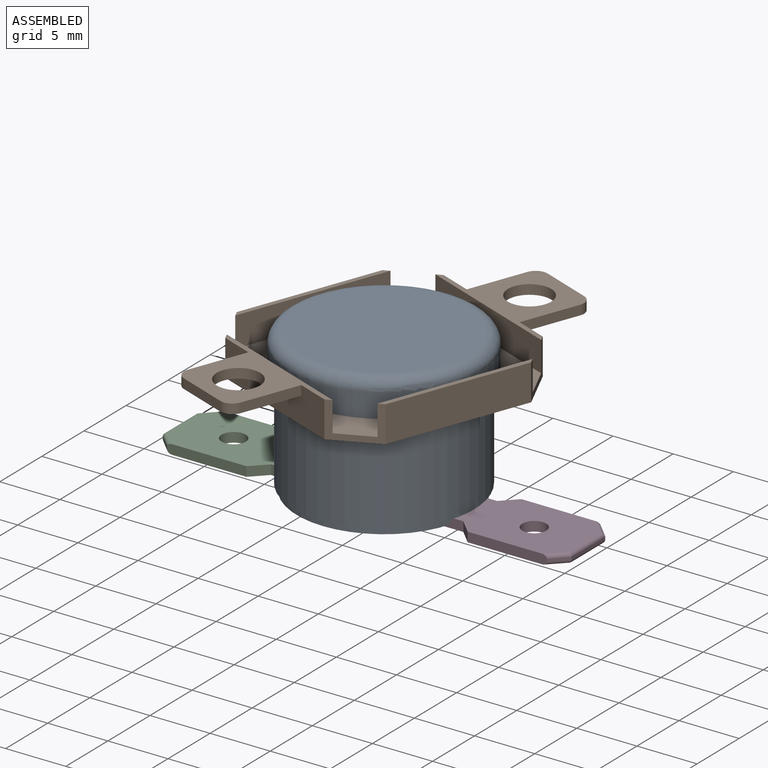
[diagram: assembled view]
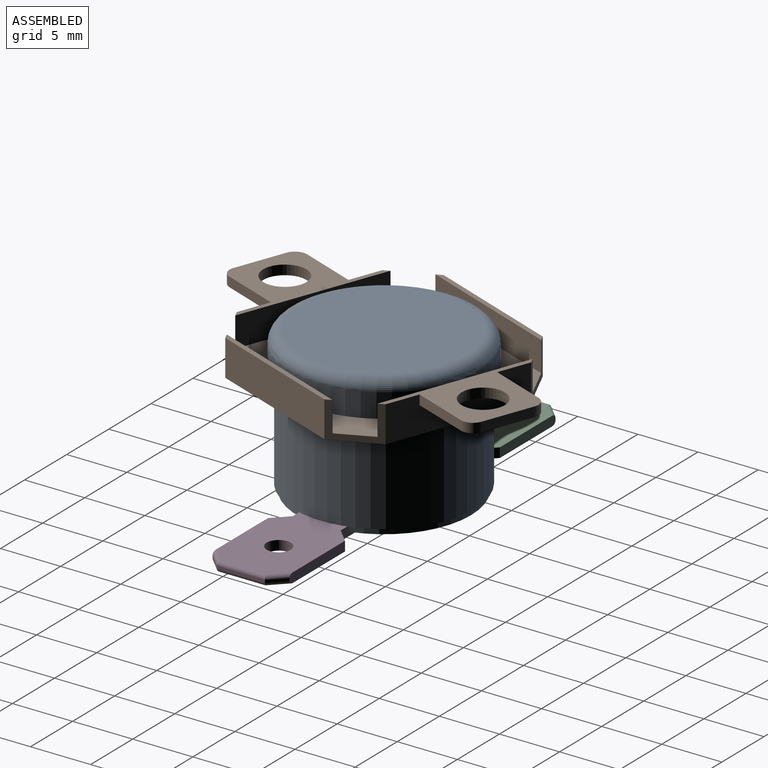
[diagram: assembled view, second angle]
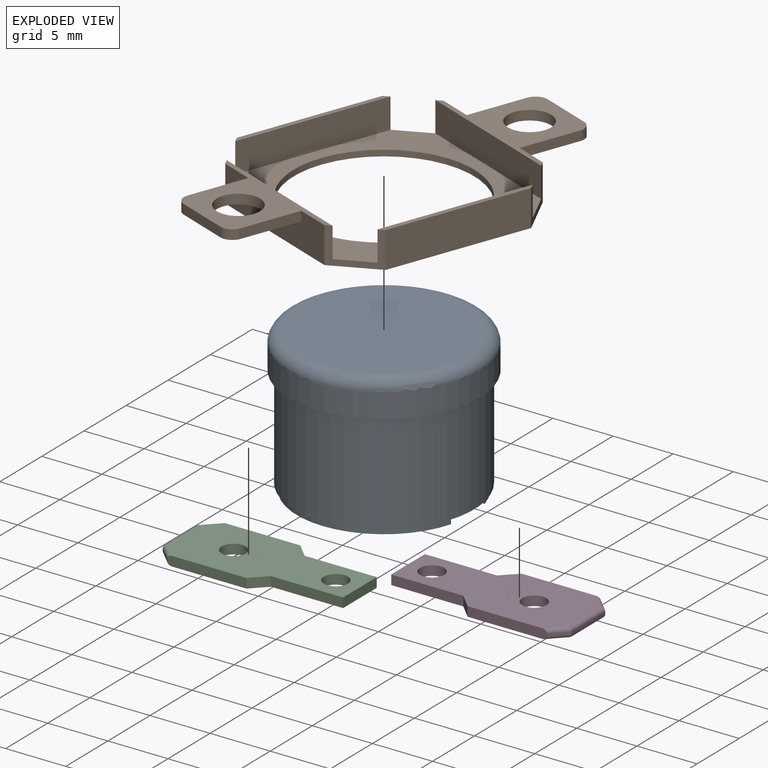
[diagram: exploded view]
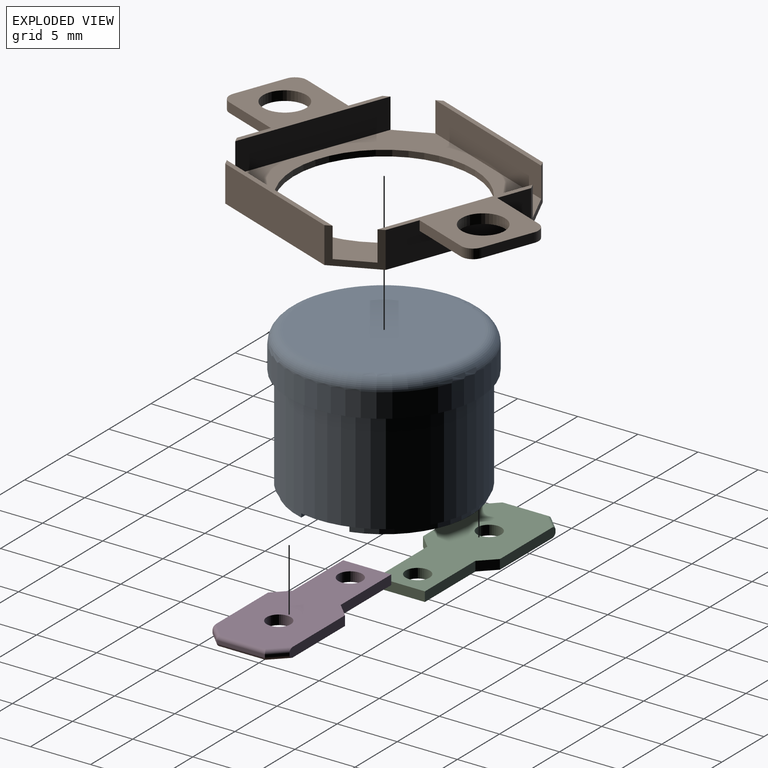
[diagram: exploded view, second angle]
ASSEMBLY  parts=4 mates=3
PART A: 19 faces, bbox 17.2x17.2x12 mm
  f0: cylinder r=7.25mm len=13.94mm, axis (0,0,-1), area 9.4mm2, adj f1,f7,f12,f14
  f1: plane 14.5x13.94mm, normal (0,0,1), area 123.9mm2, adj f0,f8,f9,f10,f12,f13,f14,f15
  f2: cylinder r=7.95mm len=15.9mm, axis (0,0,-1), area 99.9mm2, adj f3,f5
  f3: plane 15.9x15.9mm, normal (0,0,1), area 21.8mm2, adj f2,f6
  f4: plane 13.9x13.9mm, normal (0,0,-1), area 151.7mm2, adj f5
  f5: torus R=6.95mm, axis (0,0,1), area 74.9mm2, adj f2,f4
  f6: cylinder r=7.5mm len=15mm, axis (0,0,-1), area 400.6mm2, adj f3,f7
  f7: plane 15x15mm, normal (0,0,1), area 46.6mm2, adj f0,f6,f8,f9,f10,f11,f12,f13
  f8: cylinder r=7.25mm len=13.94mm, axis (0,0,-1), area 9.4mm2, adj f1,f7,f9,f13
  f9: plane 4.97x0.5mm, normal (0,-1,0), area 2.5mm2, adj f1,f7,f8,f10
  f10: plane 4x0.5mm, normal (1,0,0), area 2mm2, adj f1,f7,f9,f12
  f11: cylinder r=1mm len=2mm, axis (0,0,1), area 3.1mm2, adj f7,f17
  f12: plane 4.97x0.5mm, normal (0,1,0), area 2.5mm2, adj f0,f1,f7,f10
  f13: plane 4.97x0.5mm, normal (0,-1,0), area 2.5mm2, adj f1,f7,f8,f15
  f14: plane 4.97x0.5mm, normal (0,1,0), area 2.5mm2, adj f0,f1,f7,f15
  f15: plane 4x0.5mm, normal (-1,0,0), area 2mm2, adj f1,f7,f13,f14
  f16: cylinder r=1mm len=2mm, axis (0,0,1), area 3.1mm2, adj f7,f18
  f17: plane 2x2mm, normal (0,0,1), area 3.1mm2, adj f11
  f18: plane 2x2mm, normal (0,0,1), area 3.1mm2, adj f16
PART B: 33 faces, bbox 18x30x3 mm
  f0: plane 12x3mm, normal (0,1,0), area 30.9mm2, adj f1,f2,f6,f12,f23,f24,f25
  f1: plane 3x3mm, normal (-0.71,0.71,0), area 4.9mm2, adj f0,f5,f6,f7,f12,f15,f16,f18
  f2: plane 3x3mm, normal (0.71,0.71,0), area 4.9mm2, adj f0,f6,f11,f12,f13,f16,f17,f18
  f3: cylinder r=7.5mm len=15mm, axis (0,0,-1), area 23.6mm2, adj f12,f18
  f4: plane 12.8x6.4mm, normal (0,0,-1), area 32.8mm2, adj f8,f9,f10,f14,f19,f20,f22,f28
  f5: plane 12.8x0.4mm, normal (0,0,-1), area 5mm2, adj f1,f7,f8,f15
  f6: plane 12.8x6.4mm, normal (0,0,-1), area 32.8mm2, adj f0,f1,f2,f16,f23,f25,f26,f27
  f7: plane 12x3mm, normal (-1,0,0), area 36mm2, adj f1,f5,f8,f12
  f8: plane 3x3mm, normal (-0.71,-0.71,0), area 4.9mm2, adj f4,f5,f7,f9,f12,f14,f15,f18
  f9: plane 12x3mm, normal (0,-1,0), area 30.9mm2, adj f4,f8,f10,f12,f19,f20,f21
  f10: plane 3x3mm, normal (0.71,-0.71,0), area 4.9mm2, adj f4,f9,f11,f12,f13,f14,f17,f18
  f11: plane 12x3mm, normal (1,0,0), area 36mm2, adj f2,f10,f12,f13
  f12: plane 18x18mm, normal (0,0,1), area 129.3mm2, adj f0,f1,f2,f3,f7,f8,f9,f10
  f13: plane 12.8x0.4mm, normal (0,0,-1), area 5mm2, adj f2,f10,f11,f17
  f14: plane 12.8x2.5mm, normal (0,1,0), area 32mm2, adj f4,f8,f10,f18
  f15: plane 12.8x2.5mm, normal (1,0,0), area 32mm2, adj f1,f5,f8,f18
  f16: plane 12.8x2.5mm, normal (0,-1,0), area 32mm2, adj f1,f2,f6,f18
  f17: plane 12.8x2.5mm, normal (-1,0,0), area 32mm2, adj f2,f10,f13,f18
  f18: plane 17.2x17.2mm, normal (0,0,-1), area 109.4mm2, adj f1,f2,f3,f8,f10,f14,f15,f16
  f19: plane 5x0.8mm, normal (-1,0,0), area 4mm2, adj f4,f9,f21,f32
  f20: plane 5x0.8mm, normal (1,0,0), area 4mm2, adj f4,f9,f21,f31
  f21: plane 6.4x6mm, normal (0,0,1), area 27.8mm2, adj f9,f19,f20,f22,f28,f31,f32
  f22: plane 4.4x0.8mm, normal (0,-1,0), area 3.5mm2, adj f4,f21,f31,f32
  f23: plane 5x0.8mm, normal (-1,0,0), area 4mm2, adj f0,f6,f24,f29
  f24: plane 6.4x6mm, normal (0,0,1), area 27.8mm2, adj f0,f23,f25,f26,f27,f29,f30
  f25: plane 5x0.8mm, normal (1,0,0), area 4mm2, adj f0,f6,f24,f30
  f26: plane 4.4x0.8mm, normal (0,1,0), area 3.5mm2, adj f6,f24,f29,f30
  f27: cylinder r=1.8mm len=3.6mm, axis (0,0,-1), area 9mm2, adj f6,f24
  f28: cylinder r=1.8mm len=3.6mm, axis (0,0,-1), area 9mm2, adj f4,f21
  f29: cylinder r=1mm len=1mm, axis (0,0,-1), area 1.3mm2, adj f6,f23,f24,f26
  f30: cylinder r=1mm len=1mm, axis (0,0,1), area 1.3mm2, adj f6,f24,f25,f26
  f31: cylinder r=1mm len=1mm, axis (0,0,-1), area 1.3mm2, adj f4,f20,f21,f22
  f32: cylinder r=1mm len=1mm, axis (0,0,1), area 1.3mm2, adj f4,f19,f21,f22
PART C: 20 faces, bbox 15x6.8x0.8 mm
  f0: plane 1.2x1.2mm, normal (-0.71,0.71,0), area 1.4mm2, adj f1,f10,f12,f13
  f1: plane 6x0.8mm, normal (0,1,0), area 4.8mm2, adj f0,f2,f12,f13
  f2: plane 4x0.8mm, normal (-1,0,0), area 3.2mm2, adj f1,f3,f12,f13
  f3: plane 6x0.8mm, normal (0,-1,0), area 4.8mm2, adj f2,f4,f12,f13
  f4: plane 1.2x1.2mm, normal (-0.71,-0.71,0), area 1.4mm2, adj f3,f5,f12,f13
  f5: plane 6.6x0.8mm, normal (0,-1,0), area 5.2mm2, adj f4,f6,f12,f13,f16,f19
  f6: plane 1.2x1.2mm, normal (0.71,-0.71,0), area 0.3mm2, adj f5,f7,f16,f19
  f7: plane 4x0.2mm, normal (1,0,0), area 0.8mm2, adj f6,f8,f15,f18
  f8: plane 1.2x1.2mm, normal (0.71,0.71,0), area 0.3mm2, adj f7,f10,f14,f17
  f9: cylinder r=1mm len=2mm, axis (0,0,-1), area 5mm2, adj f12,f13
  f10: plane 6.6x0.8mm, normal (0,1,0), area 5.2mm2, adj f0,f8,f12,f13,f14,f17
  f11: cylinder r=1mm len=2mm, axis (0,0,-1), area 5mm2, adj f12,f13
  f12: plane 14.7x6.4mm, normal (0,0,1), area 70.2mm2, adj f0,f1,f2,f3,f4,f5,f9,f10
  f13: plane 14.7x6.4mm, normal (0,0,-1), area 70.2mm2, adj f0,f1,f2,f3,f4,f5,f9,f10
  f14: cylinder r=0.3mm len=1.62mm, axis (-0.71,0.71,0), area 0.8mm2, adj f8,f10,f13,f15
  f15: cylinder r=0.3mm len=4mm, axis (0,1,0), area 1.8mm2, adj f7,f13,f14,f16
  f16: cylinder r=0.3mm len=1.62mm, axis (0.71,0.71,0), area 0.8mm2, adj f5,f6,f13,f15
  f17: cylinder r=0.3mm len=1.62mm, axis (0.71,-0.71,0), area 0.8mm2, adj f8,f10,f12,f18
  f18: cylinder r=0.3mm len=4mm, axis (0,-1,0), area 1.8mm2, adj f7,f12,f17,f19
  f19: cylinder r=0.3mm len=1.62mm, axis (-0.71,-0.71,0), area 0.8mm2, adj f5,f6,f12,f18
PART D: same geometry as C
PLACE A rot(axis=(0,1,0),180deg) t=(-11.29,-2.5,9.39)mm fixed
PLACE B rot(axis=(-0.18,-0.98,0),180deg) t=(-11.29,-2.5,8.83)mm
PLACE C rot(axis=(0,0,1),180deg) t=(-20.79,-2.5,-2.91)mm
PLACE D t=(-1.79,-2.5,-2.91)mm
MATE cylindrical A.f6 <-> B.f3  axis (0,0,1) through (-11.29,-2.5,-2.11)mm
MATE fastened A.f11 <-> C.f9  axis (0,0,-1) through (-15.29,-2.5,-2.11)mm
MATE fastened A.f16 <-> D.f9  axis (0,0,-1) through (-7.29,-2.5,-2.11)mm
